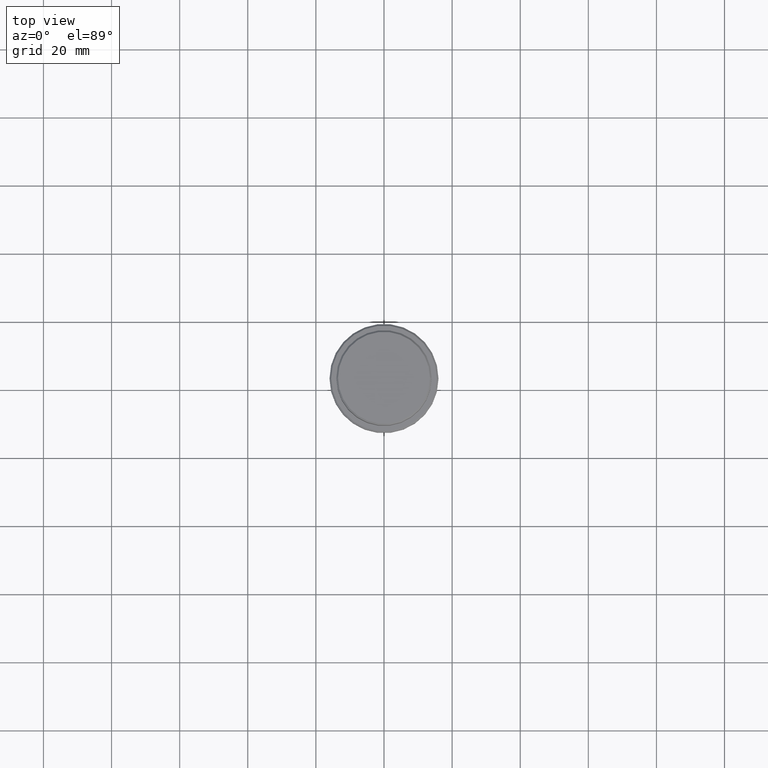
[diagram: clean part render]
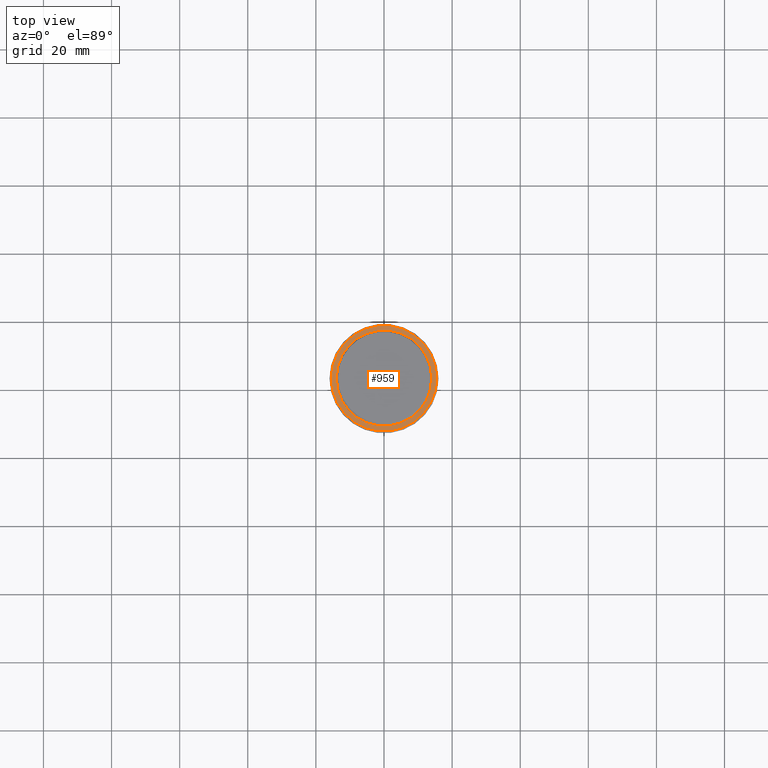
[diagram: same view with one face highlighted and labeled with its STEP entity id]
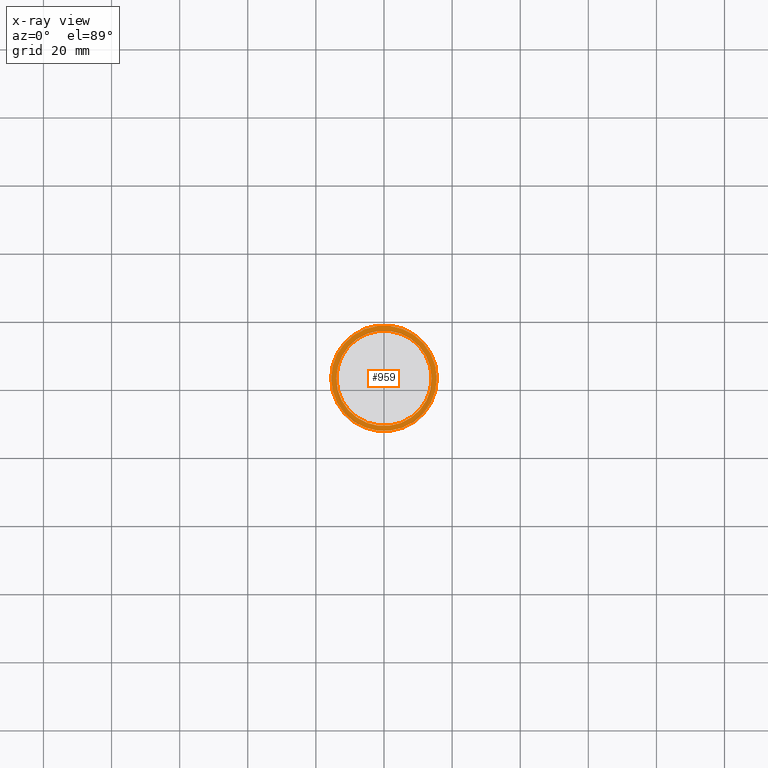
[diagram: x-ray of the same camera — body ghosted, the highlighted face saturated]
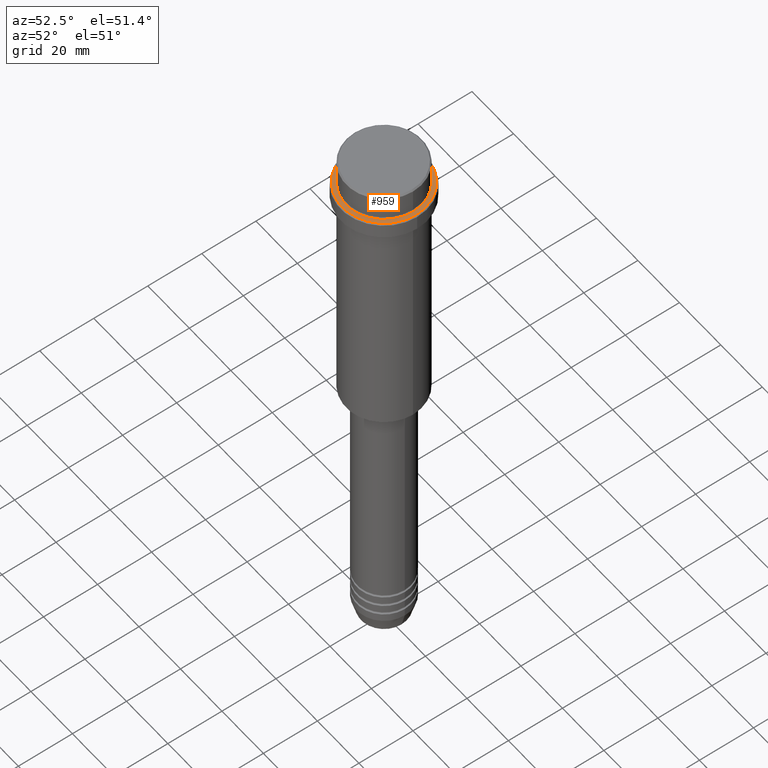
[diagram: same view with one face highlighted and labeled with its STEP entity id]
A machine part, top view. The second image highlights one B-rep face of the part: STEP entity #959.
The next image is the same camera in x-ray: the body ghosted, the highlighted face saturated — about 0% of this face is hidden behind the body in this view.
A second angle (auxiliary view) of the same face is appended — the face is thin or edge-on in the first view.
In plain terms, the highlighted planar face has unit normal (0, -0, 1).
Its self-contained STEP definition (entity closure, byte-faithful):
#9 = AXIS2_PLACEMENT_3D ( 'NONE', #1061, #307, #958 ) ;
#73 = EDGE_LOOP ( 'NONE', ( #552, #1102 ) ) ;
#83 = CIRCLE ( 'NONE', #9, 13.99999999999996803 ) ;
#97 = CARTESIAN_POINT ( 'NONE',  ( 13.99999999999996803, 0.000000000000000000, -9.999999999999998224 ) ) ;
#104 = DIRECTION ( 'NONE',  ( -0.000000000000000000, -0.000000000000000000, 1.000000000000000000 ) ) ;
#112 = CARTESIAN_POINT ( 'NONE',  ( -13.99999999999996803, 1.714505518806290694E-15, -9.999999999999998224 ) ) ;
#137 = EDGE_CURVE ( 'NONE', #509, #662, #646, .T. ) ;
#163 = DIRECTION ( 'NONE',  ( 1.000000000000000000, 0.000000000000000000, 0.000000000000000000 ) ) ;
#213 = DIRECTION ( 'NONE',  ( 0.000000000000000000, -0.000000000000000000, 1.000000000000000000 ) ) ;
#227 = FACE_BOUND ( 'NONE', #686, .T. ) ;
#307 = DIRECTION ( 'NONE',  ( 0.000000000000000000, 0.000000000000000000, -1.000000000000000000 ) ) ;
#416 = EDGE_CURVE ( 'NONE', #1186, #1306, #1005, .T. ) ;
#419 = PLANE ( 'NONE',  #776 ) ;
#430 = DIRECTION ( 'NONE',  ( 1.000000000000000000, 0.000000000000000000, 0.000000000000000000 ) ) ;
#491 = AXIS2_PLACEMENT_3D ( 'NONE', #1140, #809, #163 ) ;
#509 = VERTEX_POINT ( 'NONE', #917 ) ;
#527 = DIRECTION ( 'NONE',  ( 1.000000000000000000, 0.000000000000000000, 0.000000000000000000 ) ) ;
#538 = AXIS2_PLACEMENT_3D ( 'NONE', #1277, #104, #527 ) ;
#552 = ORIENTED_EDGE ( 'NONE', *, *, #137, .T. ) ;
#641 = EDGE_CURVE ( 'NONE', #1306, #1186, #83, .T. ) ;
#646 = CIRCLE ( 'NONE', #1094, 15.49999999999995737 ) ;
#662 = VERTEX_POINT ( 'NONE', #1066 ) ;
#686 = EDGE_LOOP ( 'NONE', ( #1041, #692 ) ) ;
#692 = ORIENTED_EDGE ( 'NONE', *, *, #641, .T. ) ;
#746 = CARTESIAN_POINT ( 'NONE',  ( 0.000000000000000000, 0.000000000000000000, -9.999999999999998224 ) ) ;
#776 = AXIS2_PLACEMENT_3D ( 'NONE', #1411, #213, #1399 ) ;
#809 = DIRECTION ( 'NONE',  ( 0.000000000000000000, 0.000000000000000000, -1.000000000000000000 ) ) ;
#917 = CARTESIAN_POINT ( 'NONE',  ( -15.49999999999995737, 0.000000000000000000, -9.999999999999998224 ) ) ;
#958 = DIRECTION ( 'NONE',  ( 1.000000000000000000, 0.000000000000000000, 0.000000000000000000 ) ) ;
#959 = ADVANCED_FACE ( 'NONE', ( #1176, #227 ), #419, .T. ) ;
#1005 = CIRCLE ( 'NONE', #491, 13.99999999999996803 ) ;
#1010 = CIRCLE ( 'NONE', #538, 15.49999999999995737 ) ;
#1041 = ORIENTED_EDGE ( 'NONE', *, *, #416, .T. ) ;
#1061 = CARTESIAN_POINT ( 'NONE',  ( 0.000000000000000000, 0.000000000000000000, -9.999999999999998224 ) ) ;
#1066 = CARTESIAN_POINT ( 'NONE',  ( 15.49999999999995737, 1.928818708657077006E-15, -9.999999999999998224 ) ) ;
#1094 = AXIS2_PLACEMENT_3D ( 'NONE', #746, #1184, #430 ) ;
#1102 = ORIENTED_EDGE ( 'NONE', *, *, #1155, .T. ) ;
#1140 = CARTESIAN_POINT ( 'NONE',  ( 0.000000000000000000, 0.000000000000000000, -9.999999999999998224 ) ) ;
#1155 = EDGE_CURVE ( 'NONE', #662, #509, #1010, .T. ) ;
#1176 = FACE_OUTER_BOUND ( 'NONE', #73, .T. ) ;
#1184 = DIRECTION ( 'NONE',  ( -0.000000000000000000, -0.000000000000000000, 1.000000000000000000 ) ) ;
#1186 = VERTEX_POINT ( 'NONE', #97 ) ;
#1277 = CARTESIAN_POINT ( 'NONE',  ( 0.000000000000000000, 0.000000000000000000, -9.999999999999998224 ) ) ;
#1306 = VERTEX_POINT ( 'NONE', #112 ) ;
#1399 = DIRECTION ( 'NONE',  ( 1.000000000000000000, 0.000000000000000000, 0.000000000000000000 ) ) ;
#1411 = CARTESIAN_POINT ( 'NONE',  ( 0.000000000000000000, 13.49999999999996625, -9.999999999999998224 ) ) ;